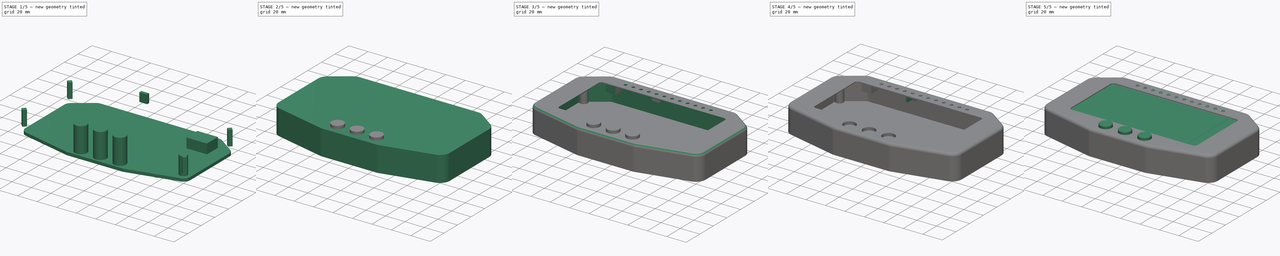
[diagram: build sequence overview — one tinted view per stage of 5, left to right]
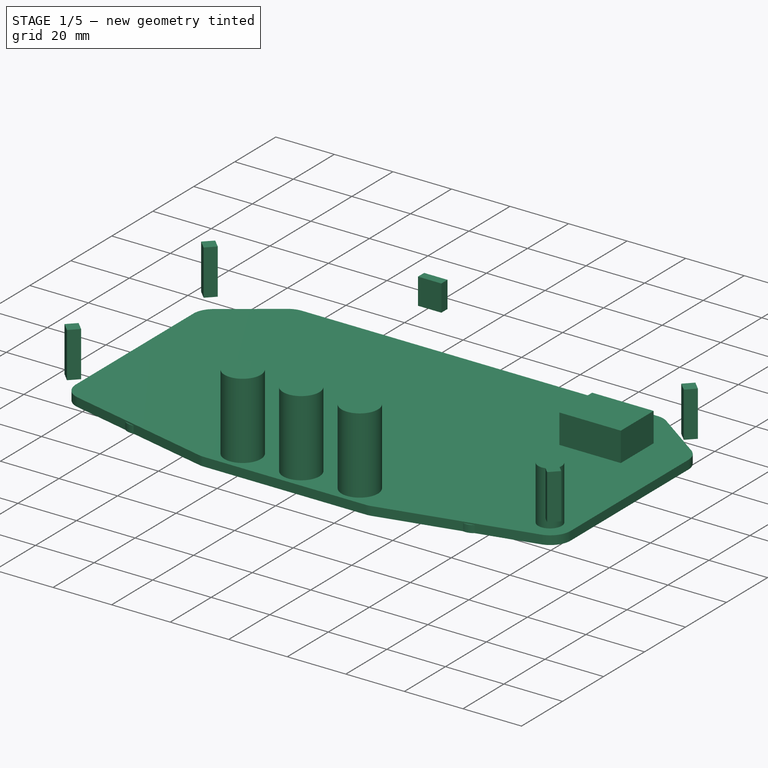
[diagram: stage 1 of 5 — iso view after this stage's code; geometry added in this stage tinted green]
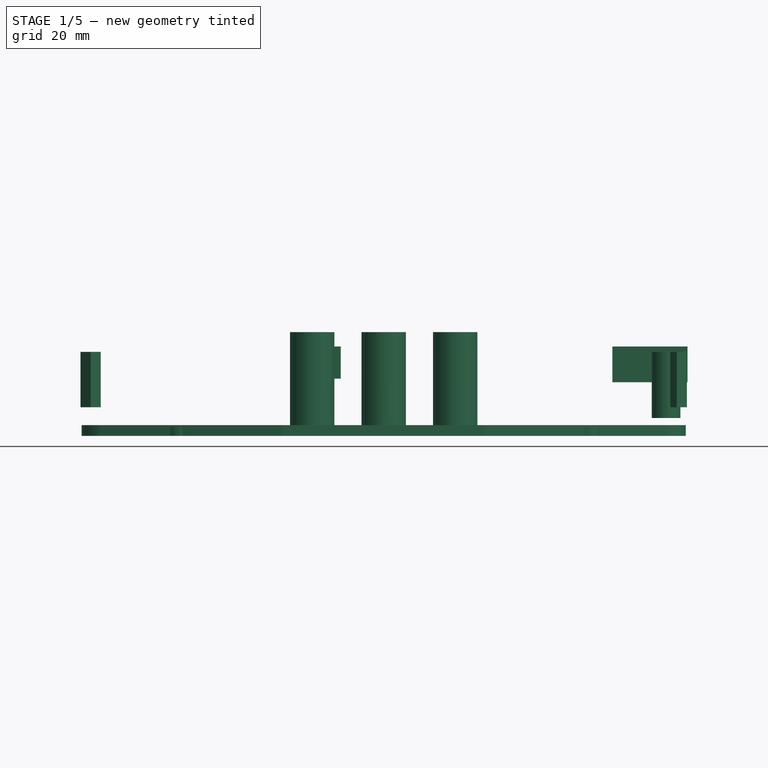
[diagram: stage 1 of 5 — front view after this stage's code; geometry added in this stage tinted green]
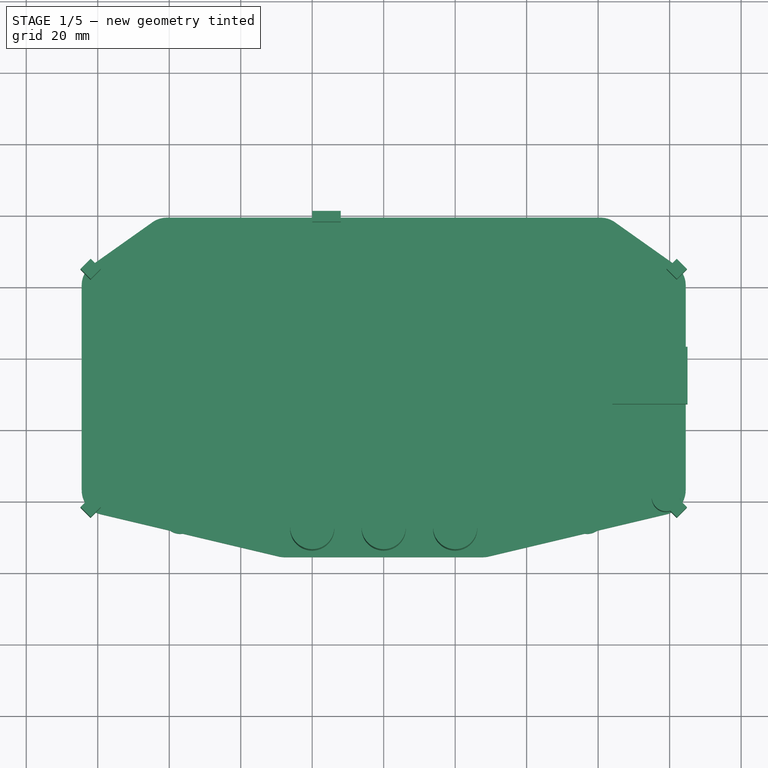
[diagram: stage 1 of 5 — top view after this stage's code; geometry added in this stage tinted green]
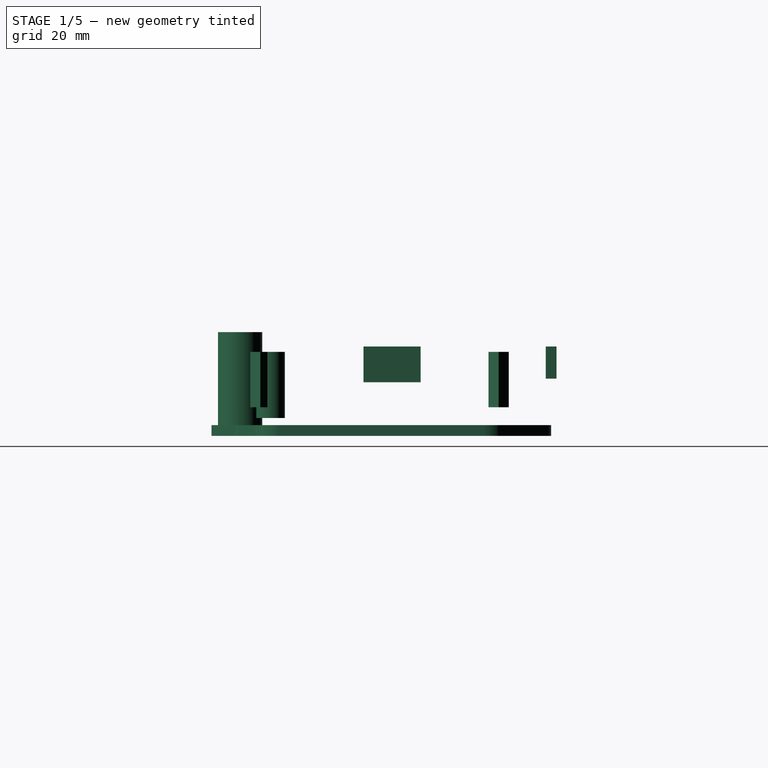
[diagram: stage 1 of 5 — right view after this stage's code; geometry added in this stage tinted green]
FCSTD DOCUMENT  (FreeCAD 0.20R29603 (Git))
Label: dash
License: All rights reserved
LicenseURL: http://en.wikipedia.org/wiki/All_rights_reserved
objects: Part::Cylinder×21, Part::Fillet×13, Part::MultiFuse×13, Part::Box×11, Part::Cut×8, Sketcher::SketchObject×3, PartDesign::Pad×3, PartDesign::Body×3, Part::Mirroring×3, Part::FeaturePython×2, Part::Thickness×1, Part::Feature×1, Image::ImagePlane×1
note: 83 computed .brp shape members not serialized (recipe doc carries the construction recipe); baked Part::Feature solids carry a one-line shape summary decoded from their .brp

FEATURE [Part::Cylinder] Cylinder012
  Angle = 360
  AttacherType = Attacher::AttachEngine3D
  FirstAngle = 0
  Height = 18.5
  Placement = pos=(79,1,5) rot=(0,0,1;0rad)
  Radius = 4
  SecondAngle = 0
FEATURE [Part::Box] Box008  label="Cube008"
  AttacherType = Attacher::AttachEngine3D
  Height = 9
  Length = 8
  Placement = pos=(-20,78,16) rot=(0,0,1;0rad)
  Width = 3
FEATURE [Part::Cylinder] Cylinder018
  Angle = 360
  AttacherType = Attacher::AttachEngine3D
  FirstAngle = 0
  Height = 29
  Placement = pos=(-20,-7.5,0) rot=(0,0,1;0rad)
  Radius = 6.2
  SecondAngle = 0
FEATURE [Part::Cylinder] Cylinder019
  Angle = 360
  AttacherType = Attacher::AttachEngine3D
  FirstAngle = 0
  Height = 29
  Placement = pos=(20,-7.5,0) rot=(0,0,1;0rad)
  Radius = 6.2
  SecondAngle = 0
FEATURE [Part::Cylinder] Cylinder020
  Angle = 360
  AttacherType = Attacher::AttachEngine3D
  FirstAngle = 0
  Height = 29
  Placement = pos=(0,-7.5,0) rot=(0,0,1;0rad)
  Radius = 6.2
  SecondAngle = 0
FEATURE [Part::MultiFuse] Fusion009
  Refine = true
  Shapes = -> [Cylinder018,Cylinder020,Cylinder019]
FEATURE [Part::Box] Box009  label="Cube009"
  AttacherType = Attacher::AttachEngine3D
  Height = 10
  Length = 21
  Placement = pos=(64,27,15) rot=(0,0,1;0rad)
  Width = 16
FEATURE [Part::Box] Box010  label="Cube010"
  AttacherType = Attacher::AttachEngine3D
  Height = 15.5
  Length = 4
  Placement = pos=(-82,1,8) rot=(0,0,1;3.92699rad)
  Width = 4
FEATURE [Part::Mirroring] Part__Mirroring001  label="Cube010 (Mirror #2)"
  Base = (0,0,0)
  Normal = (1,0,0)
  Source = -> Box010
FEATURE [Part::MultiFuse] Fusion010
  Refine = true
  Shapes = -> [Box010,Part__Mirroring001]
FEATURE [Part::Mirroring] Part__Mirroring002  label="Fusion010 (Mirror #3)"
  Base = (0,0,0)
  Normal = (0,1,0)
  Placement = pos=(0,63,0) rot=(0,0,1;0rad)
  Source = -> Fusion010
FEATURE [Part::MultiFuse] Fusion011
  Refine = true
  Shapes = -> [Fusion010,Part__Mirroring002]
FEATURE [Image::ImagePlane] ImagePlane
  Placement = pos=(0,39,25.6) rot=(0,0,1;0rad)
  XSize = 129.64
  YSize = 73.14
FEATURE [Sketcher::SketchObject] Sketch001
  FullyConstrained = true
  MapMode = 5
  Support = -> [XY_Plane001]
  sketch-geometry (22):
    g0: LineSegment StartX=-88 StartY=66 StartZ=0 EndX=-64 EndY=83 EndZ=0
    g1: LineSegment StartX=-64 StartY=83 StartZ=0 EndX=64 EndY=83 EndZ=0
    g2: LineSegment StartX=64 StartY=83 StartZ=0 EndX=88 EndY=66 EndZ=0
    g3: LineSegment StartX=88 StartY=66 StartZ=0 EndX=88 EndY=-5 EndZ=0
    g4: LineSegment StartX=88 StartY=-5 StartZ=0 EndX=29 EndY=-19 EndZ=0
    g5: LineSegment StartX=29 StartY=-19 StartZ=0 EndX=-29 EndY=-19 EndZ=0
    g6: LineSegment StartX=-29 StartY=-19 StartZ=0 EndX=-88 EndY=-5 EndZ=0
    g7: LineSegment StartX=-88 StartY=-5 StartZ=0 EndX=-88 EndY=66 EndZ=0
    g8: LineSegment StartX=-84.5 StartY=64.1901 StartZ=0 EndX=-62.886 EndY=79.5 EndZ=0
    g9: LineSegment StartX=-62.886 StartY=79.5 StartZ=0 EndX=62.886 EndY=79.5 EndZ=0
    g10: LineSegment StartX=62.886 StartY=79.5 StartZ=0 EndX=84.5 EndY=64.1901 EndZ=0
    g11: LineSegment StartX=84.5 StartY=64.1901 StartZ=0 EndX=84.5 EndY=-2.23332 EndZ=0
    g12: LineSegment StartX=84.5 StartY=-2.23332 StartZ=0 EndX=28.5904 EndY=-15.5 EndZ=0
    g13: LineSegment StartX=28.5904 StartY=-15.5 StartZ=0 EndX=-28.5904 EndY=-15.5 EndZ=0
    g14: LineSegment StartX=-28.5904 StartY=-15.5 StartZ=0 EndX=-84.5 EndY=-2.23332 EndZ=0
    g15: LineSegment StartX=-84.5 StartY=-2.23332 StartZ=0 EndX=-84.5 EndY=64.1901 EndZ=0
    g16: LineSegment StartX=-84.5 StartY=64.1901 StartZ=0 EndX=-88 EndY=64.1901 EndZ=0
    g17: LineSegment StartX=-28.5904 StartY=-15.5 StartZ=0 EndX=-28.5904 EndY=-19 EndZ=0
    g18: LineSegment StartX=84.5 StartY=-2.23332 StartZ=0 EndX=85.3081 EndY=-5.63876 EndZ=0
    g19: LineSegment StartX=-62.886 StartY=79.5 StartZ=0 EndX=-62.886 EndY=83 EndZ=0
    g20: LineSegment StartX=84.5 StartY=-2.23332 StartZ=0 EndX=88 EndY=-2.23332 EndZ=0
    g21: LineSegment StartX=62.886 StartY=79.5 StartZ=0 EndX=64.9091 EndY=82.3561 EndZ=0
  constraints (62):
    c: Coincident(g0,g1)
    c: Coincident(g1,g2)
    c: Coincident(g2,g3)
    c: Coincident(g3,g4)
    c: Coincident(g4,g5)
    c: Coincident(g5,g6)
    c: Coincident(g6,g7)
    c: Coincident(g7,g0)
    c: Symmetric(g0,g2,g-2)
    c: Symmetric(g0,g1,g-2)
    c: Symmetric(g5,g4,g-2)
    c: Symmetric(g6,g3,g-2)
    c: Vertical(g7)
    c: Distance(g6,g3) = 176
    c: DistanceY(g4,g1) = 102
    c: DistanceY(g4,g-1) = 19
    c: Distance(g1) = 128
    c: Distance(g5) = 58
    c: Distance(g7) = 71
    c: DistanceY(g-1,g0) = 66
    c: Coincident(g8,g9)
    c: Horizontal(g9)
    c: Coincident(g9,g10)
    c: Coincident(g10,g11)
    c: Vertical(g11)
    c: Coincident(g11,g12)
    c: Coincident(g12,g13)
    c: Horizontal(g13)
    c: Coincident(g13,g14)
    c: Coincident(g14,g15)
    c: Coincident(g15,g8)
    c: Vertical(g15)
    c: Parallel(g8,g0)
    c: Parallel(g10,g2)
    c: Parallel(g14,g6)
    c: Parallel(g12,g4)
    c: Equal(g14,g12)
    c: Equal(g8,g10)
    c: Coincident(g16,g8)
    c: PointOnObject(g16,g7)
    c: Horizontal(g16)
    c: Distance(g16) = 3.5
    c: Coincident(g17,g13)
    c: PointOnObject(g17,g5)
    c: Vertical(g17)
    c: Coincident(g18,g11)
    c: PointOnObject(g18,g4)
    c: Perpendicular(g12,g18)
    c: Coincident(g19,g8)
    c: PointOnObject(g19,g1)
    c: Vertical(g19)
    c: Equal(g19,g16)
    c: Equal(g16,g17)
    c: Equal(g17,g18)
    c: Coincident(g20,g11)
    c: PointOnObject(g20,g3)
    c: Horizontal(g20)
    c: Equal(g20,g18)
    c: Coincident(g21,g9)
    c: PointOnObject(g21,g2)
    c: Perpendicular(g21,g2)
    c: Equal(g21,g19)
FEATURE [PartDesign::Pad] Pad001
  Direction = (0,0,1)
  Length = 3
  Length2 = 10
  Profile = -> Sketch001
  ReferenceAxis = -> Sketch001 [N_Axis]
  Refine = true
  Type = 0
FEATURE [PartDesign::Body] Body001
  Group = -> [Sketch001,Pad001]
  Origin = -> Origin001
  Tip = -> Pad001
FEATURE [Part::Fillet] Fillet013
  Base = -> Pad001
  Edges = 8 edges r=7: [Edge1,Edge2,Edge5,Edge8,Edge11,Edge14,Edge17,Edge20]
FEATURE [Sketcher::SketchObject] Sketch002
  FullyConstrained = true
  MapMode = 5
  Support = -> [XY_Plane002]
  sketch-geometry (16):
    g0: ArcOfCircle CenterX=-57 CenterY=75 CenterZ=0 NormalX=0 NormalY=0 NormalZ=1 AngleXU=0 Radius=4.5 StartAngle=0.808057 EndAngle=3.49614
    g1: ArcOfCircle CenterX=0 CenterY=134.643 CenterZ=0 NormalX=0 NormalY=0 NormalZ=1 AngleXU=0 Radius=78 StartAngle=3.94964 EndAngle=5.47513
    g2: ArcOfCircle CenterX=57 CenterY=75 CenterZ=0 NormalX=0 NormalY=0 NormalZ=1 AngleXU=0 Radius=4.5 StartAngle=5.92864 EndAngle=8.61673
    g3: ArcOfCircle CenterX=164.379 CenterY=35.25 CenterZ=0 NormalX=0 NormalY=0 NormalZ=1 AngleXU=0 Radius=110 StartAngle=2.78705 EndAngle=3.49614
    g4: ArcOfCircle CenterX=57 CenterY=-4.5 CenterZ=0 NormalX=0 NormalY=0 NormalZ=1 AngleXU=0 Radius=4.5 StartAngle=3.94964 EndAngle=6.63773
    g5: ArcOfCircle CenterX=0 CenterY=-64.1427 CenterZ=0 NormalX=0 NormalY=0 NormalZ=1 AngleXU=0 Radius=78 StartAngle=0.808051 EndAngle=2.33354
    g6: ArcOfCircle CenterX=-57 CenterY=-4.5 CenterZ=0 NormalX=0 NormalY=0 NormalZ=1 AngleXU=0 Radius=4.5 StartAngle=2.78705 EndAngle=5.47513
    g7: ArcOfCircle CenterX=-164.379 CenterY=35.25 CenterZ=0 NormalX=0 NormalY=0 NormalZ=1 AngleXU=0 Radius=110 StartAngle=5.92864 EndAngle=6.63773
    g8: LineSegment StartX=-57 StartY=75 StartZ=0 EndX=57 EndY=75 EndZ=0
    g9: LineSegment StartX=57 StartY=75 StartZ=0 EndX=57 EndY=-4.5 EndZ=0
    g10: LineSegment StartX=57 StartY=-4.5 StartZ=0 EndX=-57 EndY=-4.5 EndZ=0
    g11: LineSegment StartX=-57 StartY=-4.5 StartZ=0 EndX=-57 EndY=75 EndZ=0
    g12: Circle CenterX=-57 CenterY=75 CenterZ=0 NormalX=0 NormalY=0 NormalZ=1 AngleXU=0 Radius=1.5
    g13: Circle CenterX=57 CenterY=75 CenterZ=0 NormalX=0 NormalY=0 NormalZ=1 AngleXU=0 Radius=1.5
    g14: Circle CenterX=57 CenterY=-4.5 CenterZ=0 NormalX=0 NormalY=0 NormalZ=1 AngleXU=0 Radius=1.5
    g15: Circle CenterX=-57 CenterY=-4.5 CenterZ=0 NormalX=0 NormalY=0 NormalZ=1 AngleXU=0 Radius=1.5
  constraints (42):
    c: PointOnObject(g1,g-2)
    c: Coincident(g1,g0)
    c: Coincident(g3,g2)
    c: Coincident(g4,g3)
    c: PointOnObject(g5,g-2)
    c: Coincident(g5,g4)
    c: Equal(g7,g3)
    c: Symmetric(g7,g3,g-2)
    c: Equal(g1,g5)
    c: Equal(g6,g0)
    c: Equal(g0,g2)
    c: Equal(g2,g4)
    c: Coincident(g8,g9)
    c: Coincident(g9,g10)
    c: Coincident(g10,g11)
    c: Coincident(g11,g8)
    c: Horizontal(g10)
    c: Vertical(g9)
    c: Vertical(g11)
    c: Coincident(g8,g0)
    c: Coincident(g9,g4)
    c: Coincident(g2,g8)
    c: Coincident(g6,g10)
    c: Distance(g8) = 114
    c: Symmetric(g0,g2,g-2)
    c: Distance(g11) = 79.5
    c: DistanceY(g-1,g6) = -4.5
    c: Radius(g0) = 4.5
    c: Tangent(g7,g6) = 1.5708
    c: Tangent(g6,g5) = 1.5708
    c: Tangent(g7,g0) = 1.5708
    c: Radius(g7) = 110
    c: Radius(g1) = 78
    c: Tangent(g2,g1) = 1.5708
    c: Coincident(g12,g0)
    c: Coincident(g13,g2)
    c: Coincident(g14,g4)
    c: Coincident(g15,g6)
    c: Equal(g15,g12)
    c: Equal(g15,g13)
    c: Equal(g15,g14)
    c: Radius(g15) = 1.5
FEATURE [PartDesign::Pad] Pad002
  Direction = (0,0,1)
  Length = 2.5
  Length2 = 10
  Profile = -> Sketch002
  ReferenceAxis = -> Sketch002 [N_Axis]
  Refine = true
  Type = 0
FEATURE [PartDesign::Body] Body002
  Group = -> [Sketch002,Pad002]
  Origin = -> Origin002
  Placement = pos=(0,0,13.5) rot=(0,0,1;0rad)
  Tip = -> Pad002
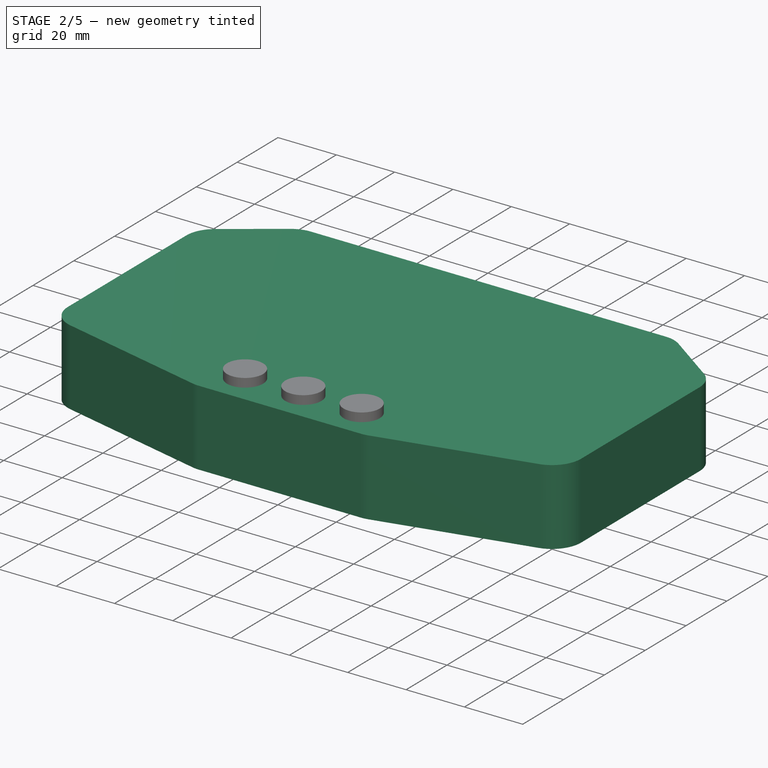
[diagram: stage 2 of 5 — iso view after this stage's code; geometry added in this stage tinted green]
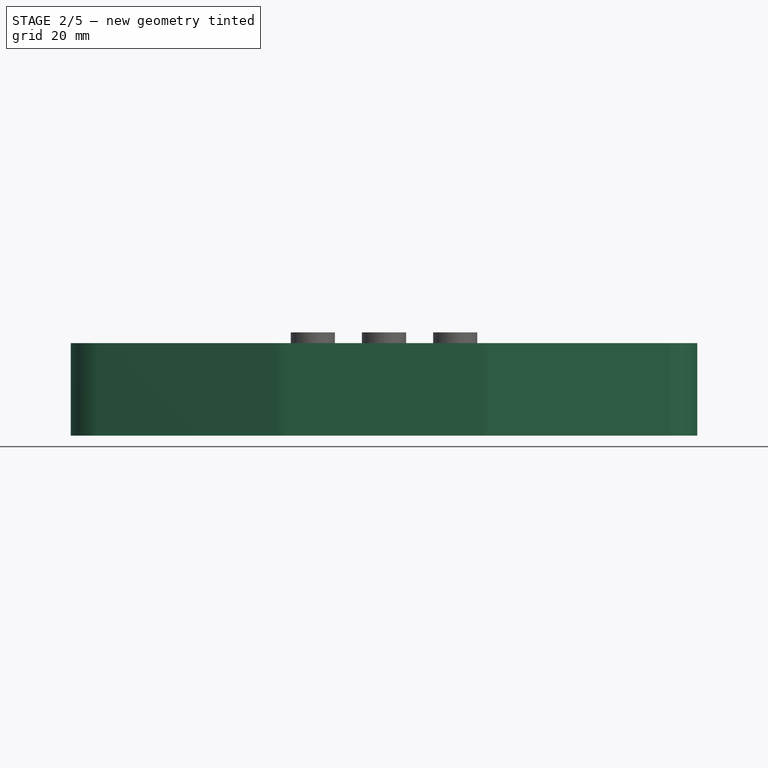
[diagram: stage 2 of 5 — front view after this stage's code; geometry added in this stage tinted green]
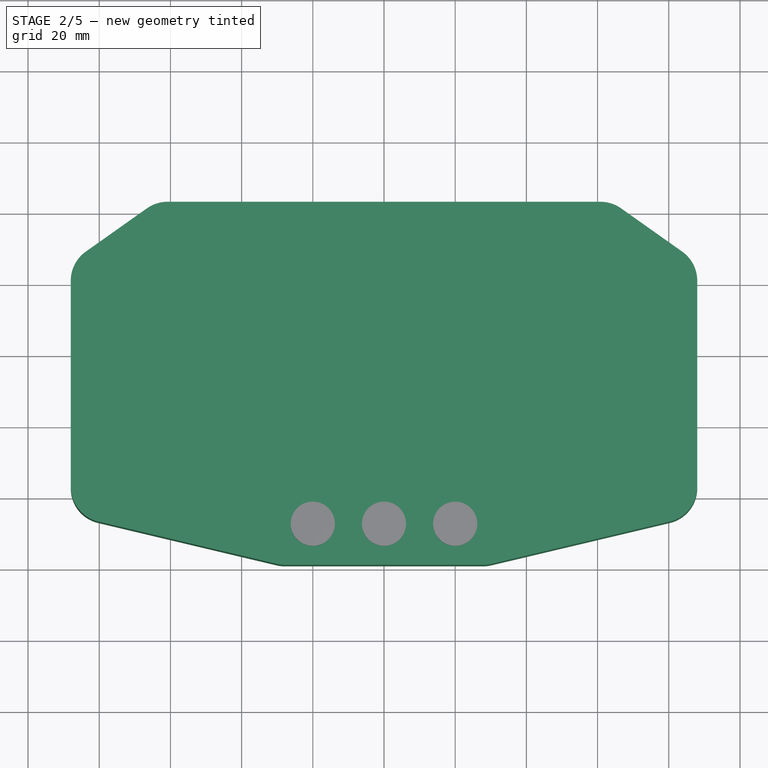
[diagram: stage 2 of 5 — top view after this stage's code; geometry added in this stage tinted green]
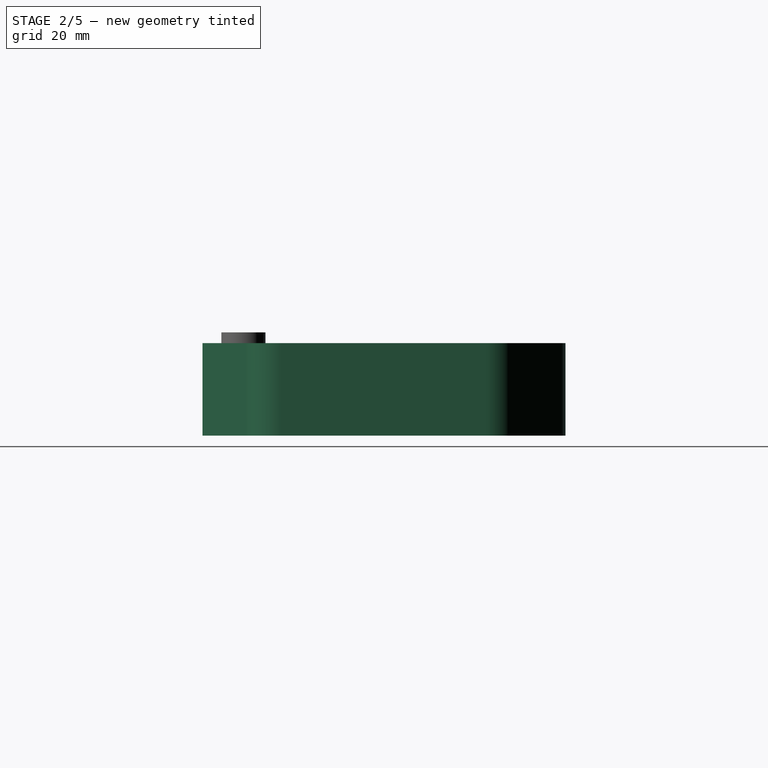
[diagram: stage 2 of 5 — right view after this stage's code; geometry added in this stage tinted green]
FEATURE [PartDesign::Pad] Pad
  Direction = (0,0,1)
  Length = 26
  Length2 = 10
  Profile = -> Sketch
  ReferenceAxis = -> Sketch [N_Axis]
  Refine = true
  Type = 0
FEATURE [PartDesign::Body] Body
  Group = -> [Sketch,Pad]
  Origin = -> Origin
  Tip = -> Pad
FEATURE [Part::Fillet] Fillet003
  Base = -> Pad
  Edges = 8 edges r=10: [Edge1,Edge2,Edge5,Edge8,Edge11,Edge14,Edge17,Edge20]
FEATURE [Part::Box] Box004  label="Cube004"
  AttacherType = Attacher::AttachEngine3D
  Height = 9
  Length = 10
  Placement = pos=(-62,-11,16) rot=(0,0,1;0rad)
  Width = 92
FEATURE [Part::Fillet] Fillet010
  Base = -> Box004
  Edges = 1 edges r=3: [Edge10]
FEATURE [Part::Mirroring] Part__Mirroring  label="Fillet010 (Mirror #1)"
  Base = (0,0,0)
  Normal = (1,0,0)
  Source = -> Fillet010
FEATURE [Part::MultiFuse] Fusion001
  Refine = true
  Shapes = -> [Part__Mirroring,Fillet010]
FEATURE [Part::Cylinder] Cylinder005
  Angle = 360
  AttacherType = Attacher::AttachEngine3D
  FirstAngle = 0
  Height = 20
  Placement = pos=(-57,-4.5,0) rot=(0,0,1;0rad)
  Radius = 1.5
  SecondAngle = 0
FEATURE [Part::Cylinder] Cylinder006
  Angle = 360
  AttacherType = Attacher::AttachEngine3D
  FirstAngle = 0
  Height = 20
  Placement = pos=(57,-4.5,0) rot=(0,0,1;0rad)
  Radius = 1.5
  SecondAngle = 0
FEATURE [Part::Cylinder] Cylinder007
  Angle = 360
  AttacherType = Attacher::AttachEngine3D
  FirstAngle = 0
  Height = 20
  Placement = pos=(57,75,0) rot=(0,0,1;0rad)
  Radius = 1.5
  SecondAngle = 0
FEATURE [Part::Cylinder] Cylinder008
  Angle = 360
  AttacherType = Attacher::AttachEngine3D
  FirstAngle = 0
  Height = 20
  Placement = pos=(-57,75,0) rot=(0,0,1;0rad)
  Radius = 1.5
  SecondAngle = 0
FEATURE [Part::MultiFuse] Fusion003
  Placement = pos=(0,0,4) rot=(0,0,1;0rad)
  Refine = true
  Shapes = -> [Cylinder005,Cylinder006,Cylinder007,Cylinder008]
FEATURE [Part::Cylinder] Cylinder009
  Angle = 360
  AttacherType = Attacher::AttachEngine3D
  FirstAngle = 0
  Height = 18.5
  Placement = pos=(-79,62,5) rot=(0,0,1;0rad)
  Radius = 4
  SecondAngle = 0
FEATURE [Part::Cylinder] Cylinder010
  Angle = 360
  AttacherType = Attacher::AttachEngine3D
  FirstAngle = 0
  Height = 18.5
  Placement = pos=(79,62,5) rot=(0,0,1;0rad)
  Radius = 4
  SecondAngle = 0
FEATURE [Part::Cylinder] Cylinder011
  Angle = 360
  AttacherType = Attacher::AttachEngine3D
  FirstAngle = 0
  Height = 18.5
  Placement = pos=(-79,1,5) rot=(0,0,1;0rad)
  Radius = 4
  SecondAngle = 0
FEATURE [Part::MultiFuse] Fusion004
  Refine = true
  Shapes = -> [Cylinder009,Cylinder010,Cylinder011,Cylinder012]
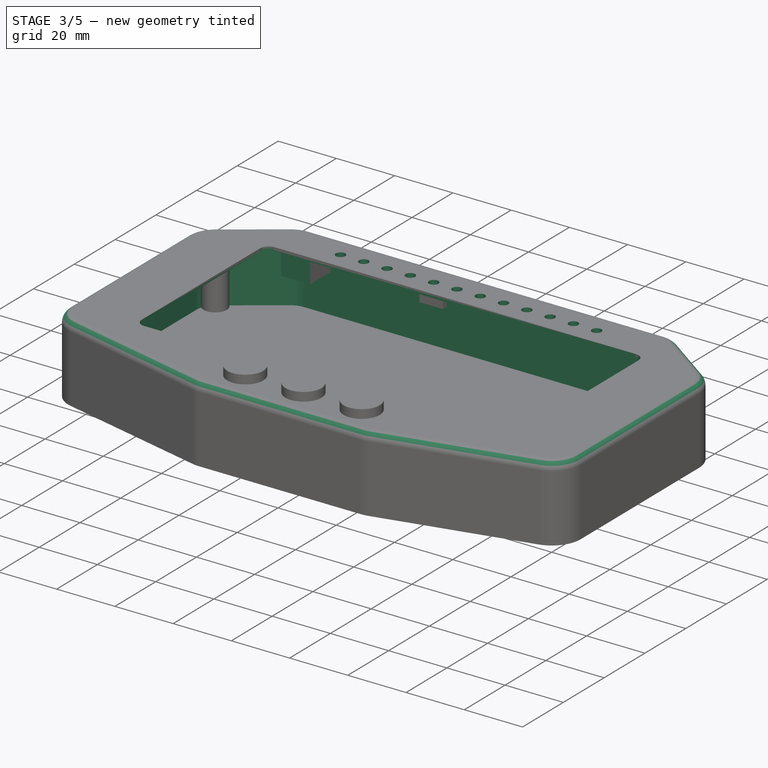
[diagram: stage 3 of 5 — iso view after this stage's code; geometry added in this stage tinted green]
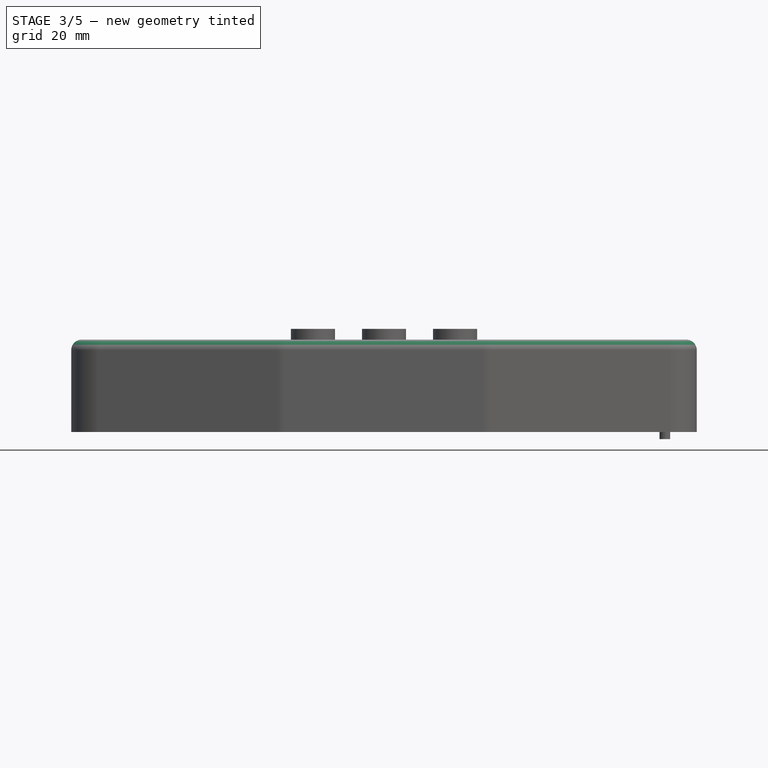
[diagram: stage 3 of 5 — front view after this stage's code; geometry added in this stage tinted green]
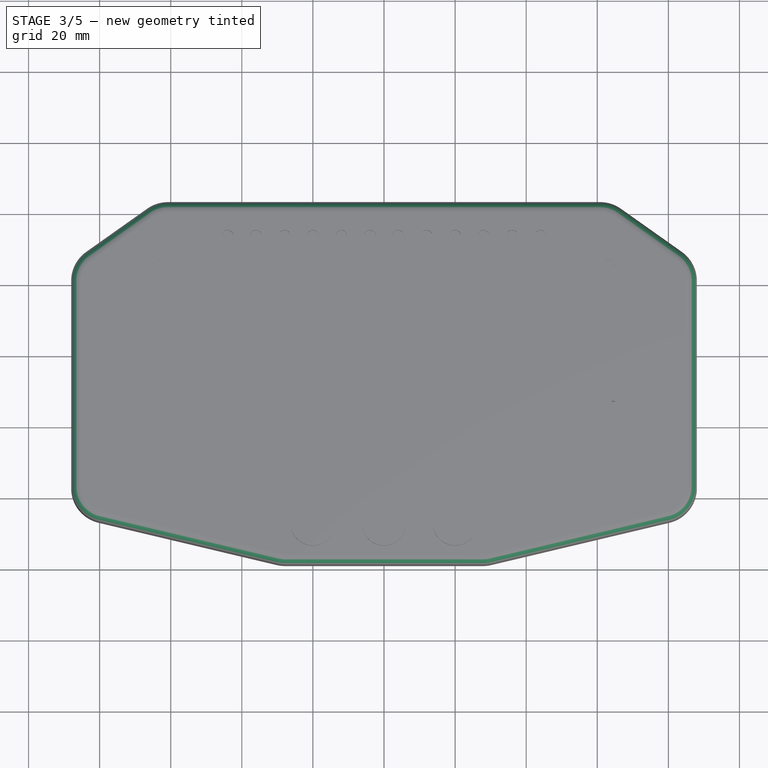
[diagram: stage 3 of 5 — top view after this stage's code; geometry added in this stage tinted green]
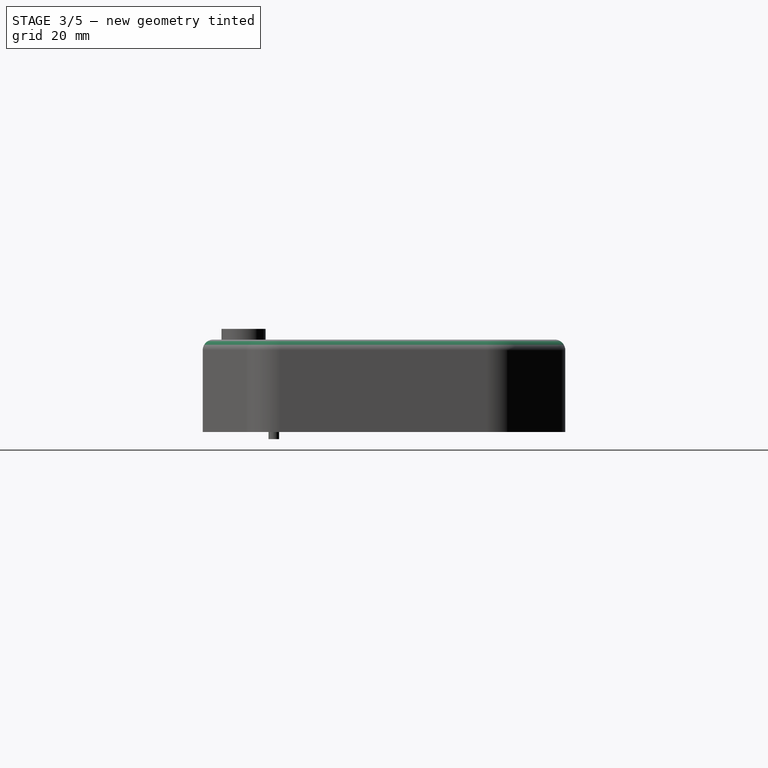
[diagram: stage 3 of 5 — right view after this stage's code; geometry added in this stage tinted green]
FEATURE [Part::Cylinder] Cylinder
  Angle = 360
  AttacherType = Attacher::AttachEngine3D
  FirstAngle = 0
  Height = 30
  Radius = 1.6
  SecondAngle = 0
FEATURE [Sketcher::SketchObject] Sketch
  FullyConstrained = true
  MapMode = 5
  Support = -> [XY_Plane]
  sketch-geometry (8):
    g0: LineSegment StartX=-88 StartY=66 StartZ=0 EndX=-64 EndY=83 EndZ=0
    g1: LineSegment StartX=-64 StartY=83 StartZ=0 EndX=64 EndY=83 EndZ=0
    g2: LineSegment StartX=64 StartY=83 StartZ=0 EndX=88 EndY=66 EndZ=0
    g3: LineSegment StartX=88 StartY=66 StartZ=0 EndX=88 EndY=-5 EndZ=0
    g4: LineSegment StartX=88 StartY=-5 StartZ=0 EndX=29 EndY=-19 EndZ=0
    g5: LineSegment StartX=29 StartY=-19 StartZ=0 EndX=-29 EndY=-19 EndZ=0
    g6: LineSegment StartX=-29 StartY=-19 StartZ=0 EndX=-88 EndY=-5 EndZ=0
    g7: LineSegment StartX=-88 StartY=-5 StartZ=0 EndX=-88 EndY=66 EndZ=0
  constraints (20):
    c: Coincident(g0,g1)
    c: Coincident(g1,g2)
    c: Coincident(g2,g3)
    c: Coincident(g3,g4)
    c: Coincident(g4,g5)
    c: Coincident(g5,g6)
    c: Coincident(g6,g7)
    c: Coincident(g7,g0)
    c: Symmetric(g0,g2,g-2)
    c: Symmetric(g0,g1,g-2)
    c: Symmetric(g5,g4,g-2)
    c: Symmetric(g6,g3,g-2)
    c: Vertical(g7)
    c: Distance(g6,g3) = 176
    c: DistanceY(g4,g1) = 102
    c: DistanceY(g4,g-1) = 19
    c: Distance(g1) = 128
    c: Distance(g5) = 58
    c: Distance(g7) = 71
    c: DistanceY(g-1,g0) = 66
FEATURE [Part::Box] Box002  label="Cube002"
  AttacherType = Attacher::AttachEngine3D
  Height = 40
  Length = 130
  Placement = pos=(-65,3,-1) rot=(0,0,1;0rad)
  Width = 64
FEATURE [Part::Fillet] Fillet002
  Base = -> Box002
  Edges = 4 edges r=3: [Edge1,Edge3,Edge5,Edge7]
FEATURE [Part::FeaturePython] Array  # Draft array (typed FeaturePython)
  AlwaysSyncPlacement = false
  Angle = 360
  ArrayType = 0
  Axis = (0,0,1)
  Base = -> Cylinder
  Center = (0,0,0)
  Count = 12
  ExpandArray = false
  Fuse = false
  IntervalAxis = (0,0,0)
  IntervalX = (8,0,0)
  IntervalY = (0,100,0)
  IntervalZ = (0,0,100)
  NumberCircles = 3
  NumberPolar = 5
  NumberX = 12
  NumberY = 1
  NumberZ = 1
  Placement = pos=(-44,73.5,0) rot=(0,0,1;0rad)
  PlacementList = 12 placements: arithmetic series from (0,0,0) step (8,0,0) to (88,0,0)
  RadialDistance = 50
  ScaleList = (12) [(1,1,1),(1,1,1),(1,1,1),(1,1,1),(1,1,1),(1,1,1),(1,1,1),(1,1,1),(1,1,1),(1,1,1),(1,1,1),(1,1,1)]
  Symmetry = 1
  TangentialDistance = 25
FEATURE [Part::Thickness] Thickness
  Faces = -> Fillet003 [Face2]
  Intersection = false
  Join = 0
  Mode = 0
  SelfIntersection = false
  Value = -3
FEATURE [Part::Fillet] Fillet008
  Base = -> Thickness
  Edges = 1 edges r=3: [Edge13]
FEATURE [Part::Box] Box003  label="Cube003"
  AttacherType = Attacher::AttachEngine3D
  Height = 9
  Length = 139
  Width = 70
FEATURE [Part::Fillet] Fillet009
  Base = -> Box003
  Edges = 4 edges r=6.5: [Edge1,Edge3,Edge5,Edge7]
  Placement = pos=(-69.5,0,16) rot=(0,0,1;0rad)
FEATURE [Part::MultiFuse] Fusion002
  Refine = true
  Shapes = -> [Fillet008,Fusion001]
FEATURE [Part::Cut] Cut
  Base = -> Fusion002
  Refine = true
  Tool = -> Fillet002
FEATURE [Part::Cut] Cut001
  Base = -> Cut
  Refine = true
  Tool = -> Fillet009
FEATURE [Part::Cut] Cut002
  Base = -> Cut001
  Refine = true
  Tool = -> Fusion003
FEATURE [Part::Cut] Cut003
  Base = -> Cut002
  Refine = true
  Tool = -> Array
FEATURE [Part::Cylinder] Cylinder016
  Angle = 360
  AttacherType = Attacher::AttachEngine3D
  FirstAngle = 0
  Height = 20.5
  Placement = pos=(79,1,-2) rot=(0,0,1;0rad)
  Radius = 1.5
  SecondAngle = 0
FEATURE [Part::MultiFuse] Fusion006
  Refine = true
  Shapes = -> [Cut003,Fusion004]
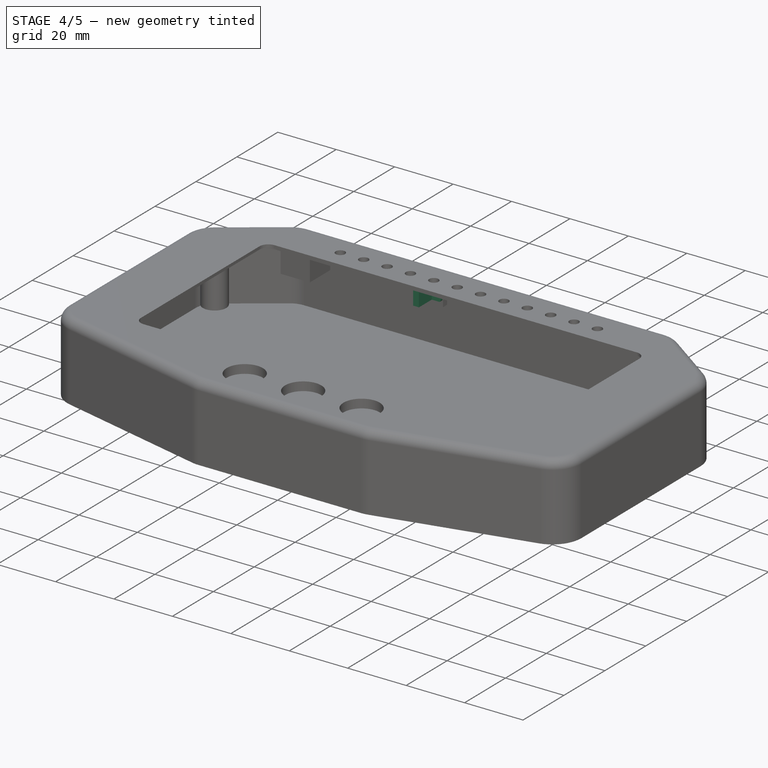
[diagram: stage 4 of 5 — iso view after this stage's code; geometry added in this stage tinted green]
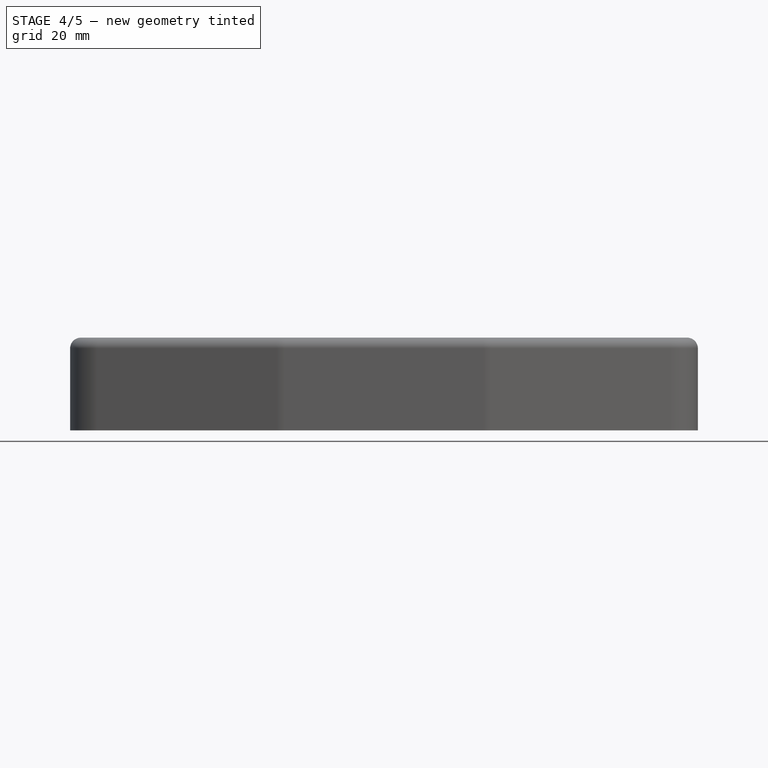
[diagram: stage 4 of 5 — front view after this stage's code; geometry added in this stage tinted green]
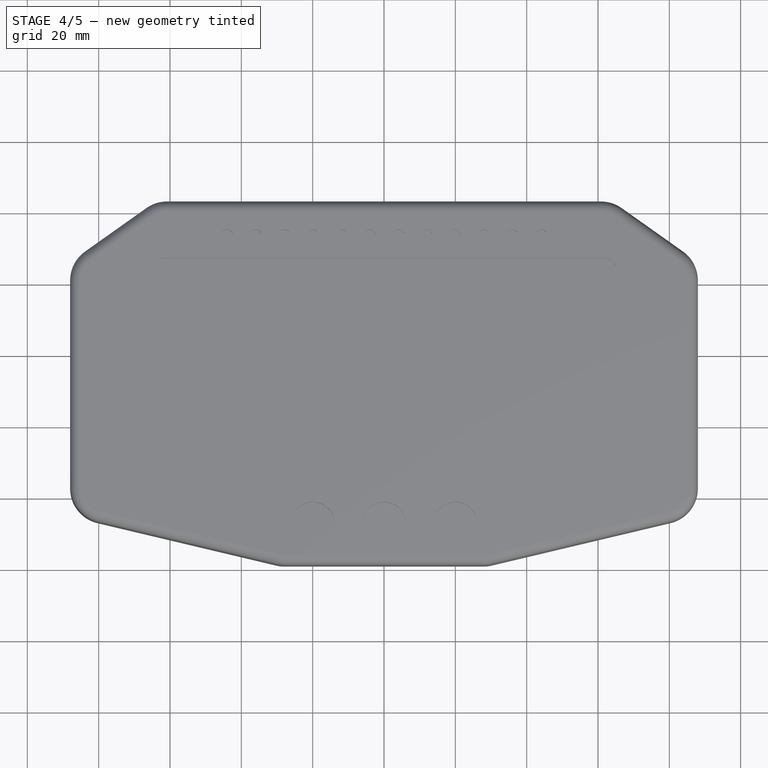
[diagram: stage 4 of 5 — top view after this stage's code; geometry added in this stage tinted green]
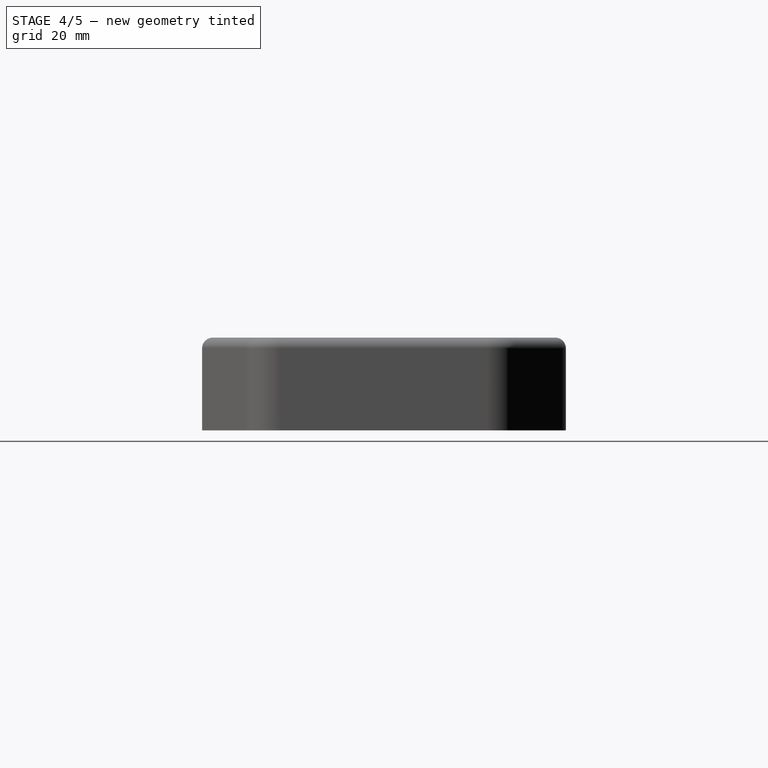
[diagram: stage 4 of 5 — right view after this stage's code; geometry added in this stage tinted green]
FEATURE [Part::Cylinder] Cylinder004
  Angle = 360
  AttacherType = Attacher::AttachEngine3D
  FirstAngle = 0
  Height = 6
  Placement = pos=(-16,77,20.5) rot=(-1,0,0;1.5708rad)
  Radius = 2.2
  SecondAngle = 0
FEATURE [Part::Cylinder] Cylinder013
  Angle = 360
  AttacherType = Attacher::AttachEngine3D
  FirstAngle = 0
  Height = 20.5
  Placement = pos=(-79,62,-2) rot=(0,0,1;0rad)
  Radius = 1.5
  SecondAngle = 0
FEATURE [Part::Cylinder] Cylinder014
  Angle = 360
  AttacherType = Attacher::AttachEngine3D
  FirstAngle = 0
  Height = 20.5
  Placement = pos=(79,62,-2) rot=(0,0,1;0rad)
  Radius = 1.5
  SecondAngle = 0
FEATURE [Part::Cylinder] Cylinder015
  Angle = 360
  AttacherType = Attacher::AttachEngine3D
  FirstAngle = 0
  Height = 20.5
  Placement = pos=(-79,1,-2) rot=(0,0,1;0rad)
  Radius = 1.5
  SecondAngle = 0
FEATURE [Part::MultiFuse] Fusion005
  Refine = true
  Shapes = -> [Cylinder013,Cylinder014,Cylinder015,Cylinder016]
FEATURE [Part::Cut] Cut004
  Base = -> Fusion006
  Refine = true
  Tool = -> Fusion005
FEATURE [Part::Box] Box006  label="Cube006"
  AttacherType = Attacher::AttachEngine3D
  Height = 5
  Length = 2
  Placement = pos=(-17,70.5,18) rot=(0,0,1;0rad)
  Width = 6.5
FEATURE [Part::Cylinder] Cylinder017
  Angle = 360
  AttacherType = Attacher::AttachEngine3D
  FirstAngle = 0
  Height = 11.5
  Placement = pos=(-16,76.5,20.5) rot=(-1,0,0;1.5708rad)
  Radius = 2.4
  SecondAngle = 0
FEATURE [Part::Box] Box007  label="Cube007"
  AttacherType = Attacher::AttachEngine3D
  Height = 5
  Length = 8
  Placement = pos=(-20,79,18) rot=(0,0,1;0rad)
  Width = 1
FEATURE [Part::MultiFuse] Fusion007
  Refine = true
  Shapes = -> [Cut004,Box008]
FEATURE [Part::Cut] Cut005
  Base = -> Fusion007
  Refine = true
  Tool = -> Cylinder017
FEATURE [Part::Fillet] Fillet011
  Base = -> Box007
  Edges = 4 edges r=0.5: [Edge2,Edge4,Edge6,Edge8]
  Placement = pos=(0,-2.25,0) rot=(0,0,1;0rad)
FEATURE [Part::Cut] Cut006
  Base = -> Cut005
  Refine = true
  Tool = -> Fusion009
FEATURE [Part::Cut] Cut007
  Base = -> Cut006
  Refine = true
  Tool = -> Box009
FEATURE [Part::MultiFuse] Fusion012
  Refine = true
  Shapes = -> [Cut007,Fusion011]
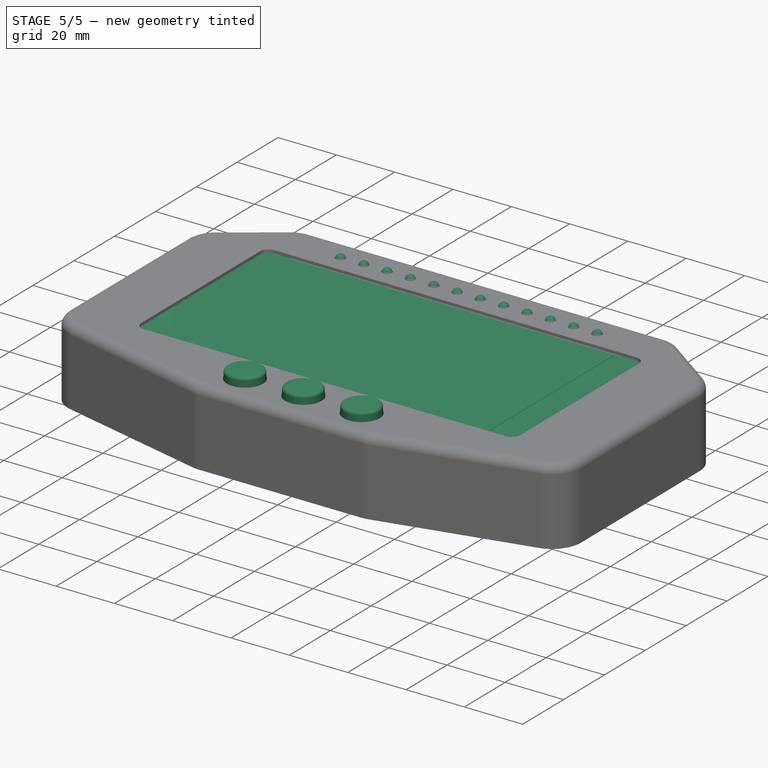
[diagram: stage 5 of 5 — iso view after this stage's code; geometry added in this stage tinted green]
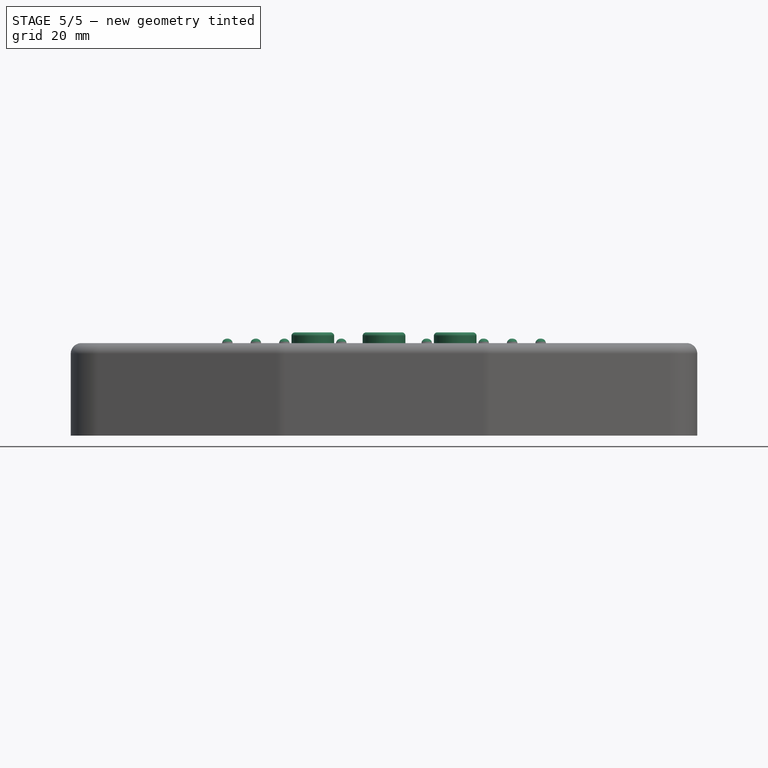
[diagram: stage 5 of 5 — front view after this stage's code; geometry added in this stage tinted green]
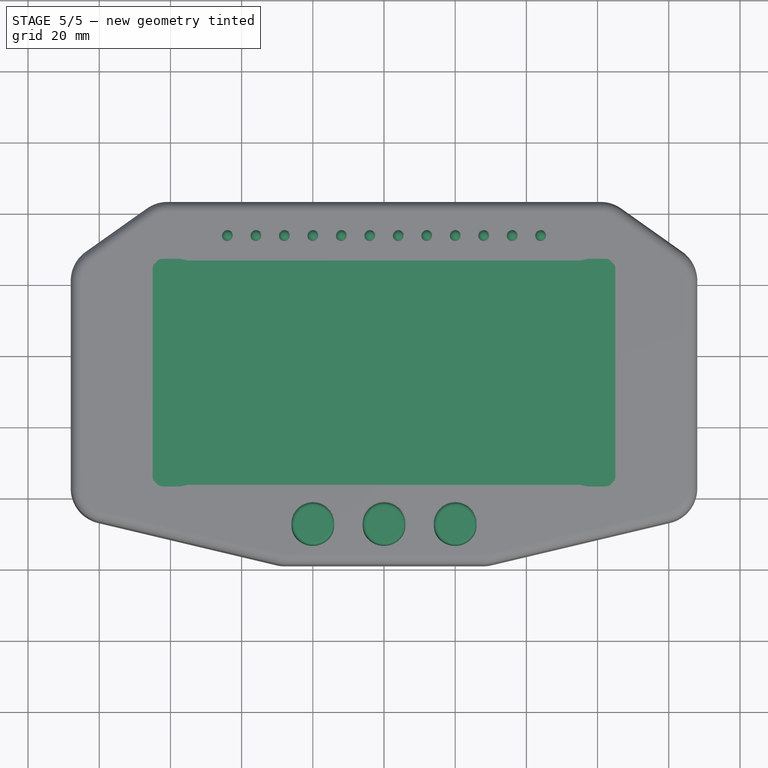
[diagram: stage 5 of 5 — top view after this stage's code; geometry added in this stage tinted green]
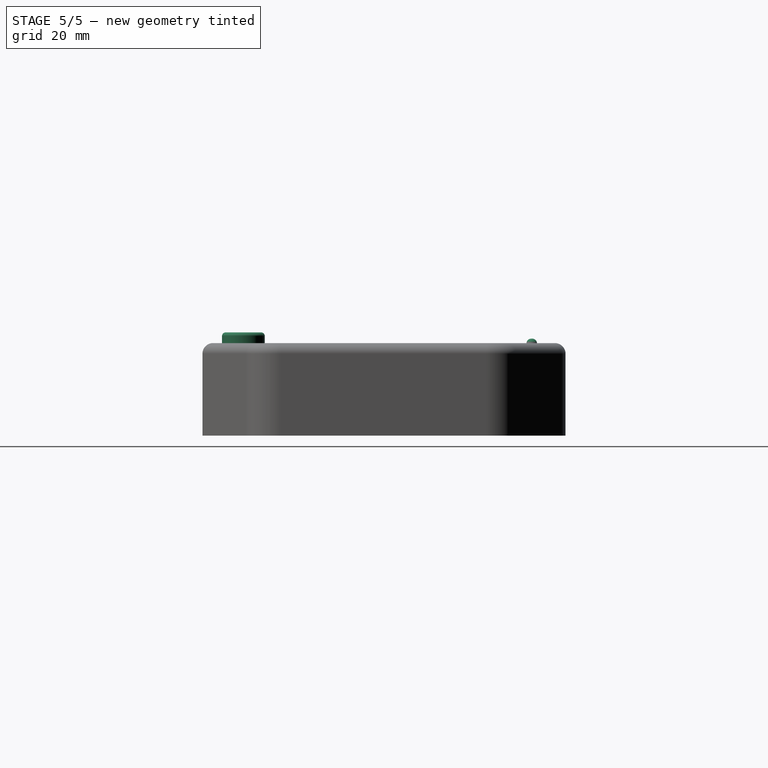
[diagram: stage 5 of 5 — right view after this stage's code; geometry added in this stage tinted green]
FEATURE [Part::Box] Box  label="Cube"
  AttacherType = Attacher::AttachEngine3D
  Height = 9
  Length = 139
  Width = 70
FEATURE [Part::Fillet] Fillet
  Base = -> Box
  Edges = 4 edges r=7.5: [Edge1,Edge3,Edge5,Edge7]
FEATURE [Part::Fillet] Fillet001
  Base = -> Fillet
  Edges = 2 edges r=2: [Edge11,Edge14]
FEATURE [Part::Box] Box001  label="Cube001"
  AttacherType = Attacher::AttachEngine3D
  Height = 8.1
  Length = 110
  Placement = pos=(14.5,3.5,1) rot=(0,0,1;0rad)
  Width = 63
FEATURE [Part::MultiFuse] Fusion  label="movil"
  Placement = pos=(-69.5,0,16) rot=(0,0,1;0rad)
  Refine = true
  Shapes = -> [Fillet001,Box001]
FEATURE [Part::Cylinder] Cylinder001
  Angle = 360
  AttacherType = Attacher::AttachEngine3D
  FirstAngle = 0
  Height = 29
  Placement = pos=(0,-7.5,0) rot=(0,0,1;0rad)
  Radius = 6
  SecondAngle = 0
FEATURE [Part::Cylinder] Cylinder002
  Angle = 360
  AttacherType = Attacher::AttachEngine3D
  FirstAngle = 0
  Height = 29
  Placement = pos=(-20,-7.5,0) rot=(0,0,1;0rad)
  Radius = 6
  SecondAngle = 0
FEATURE [Part::Cylinder] Cylinder003
  Angle = 360
  AttacherType = Attacher::AttachEngine3D
  FirstAngle = 0
  Height = 29
  Placement = pos=(20,-7.5,0) rot=(0,0,1;0rad)
  Radius = 6
  SecondAngle = 0
FEATURE [Part::Fillet] Fillet005
  Base = -> Cylinder002
  Edges = 1 edges r=1: [Edge3]
FEATURE [Part::Fillet] Fillet006
  Base = -> Cylinder001
  Edges = 1 edges r=1: [Edge3]
FEATURE [Part::Fillet] Fillet007
  Base = -> Cylinder003
  Edges = 1 edges r=1: [Edge3]
FEATURE [Part::Box] Box005  label="Cube005"
  AttacherType = Attacher::AttachEngine3D
  Height = 10
  Length = 82
  Placement = pos=(-42,70.5,1) rot=(0,0,1;0rad)
  Width = 10
FEATURE [Part::Feature] Part__Feature  label="LED 3mm Red v2"
  Placement = pos=(-44,73.5,16.65) rot=(1,0,0;1.5708rad)
  shape: bbox 3.578 x 3.853 x 12.6 mm, 31 faces, 5 solids (baked)
FEATURE [Part::FeaturePython] Array001  # Draft array (typed FeaturePython)
  AlwaysSyncPlacement = false
  Angle = 360
  ArrayType = 0
  Axis = (0,0,1)
  Base = -> Part__Feature
  Center = (0,0,0)
  Count = 12
  ExpandArray = false
  Fuse = false
  IntervalAxis = (0,0,0)
  IntervalX = (8,0,0)
  IntervalY = (0,100,0)
  IntervalZ = (0,0,100)
  NumberCircles = 3
  NumberPolar = 5
  NumberX = 12
  NumberY = 1
  NumberZ = 1
  PlacementList = 12 placements: arithmetic series from (-44,73.5,16.65) step (8,0,0) to (44,73.5,16.65)
  RadialDistance = 50
  ScaleList = (12) [(1,1,1),(1,1,1),(1,1,1),(1,1,1),(1,1,1),(1,1,1),(1,1,1),(1,1,1),(1,1,1),(1,1,1),(1,1,1),(1,1,1)]
  Symmetry = 1
  TangentialDistance = 25
FEATURE [Part::MultiFuse] Fusion008
  Refine = true
  Shapes = -> [Cylinder004,Fillet011,Box006]
FEATURE [Part::Fillet] Fillet012
  Base = -> Fusion008
  Edges = 4 edges r=0.5: [Edge28,Edge30,Edge38,Edge39]
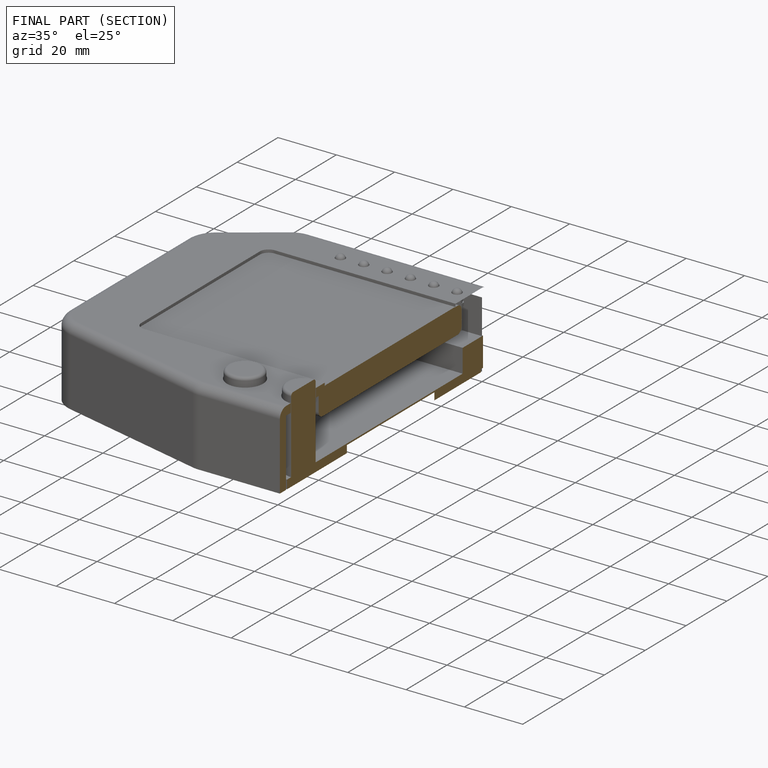
[diagram: finished part — half-section view (interior)]
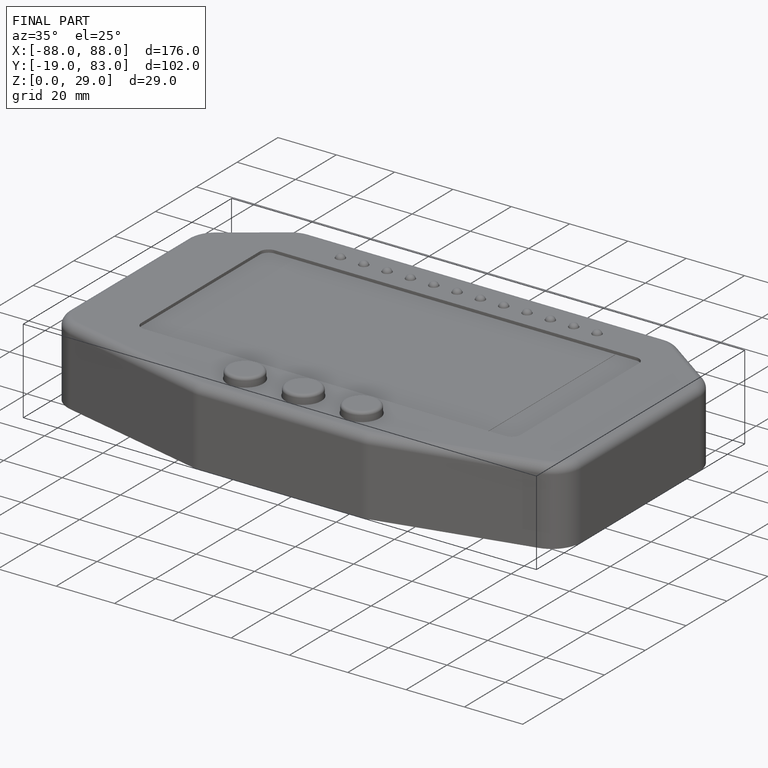
[diagram: finished part — iso view with bounding-box wireframe]
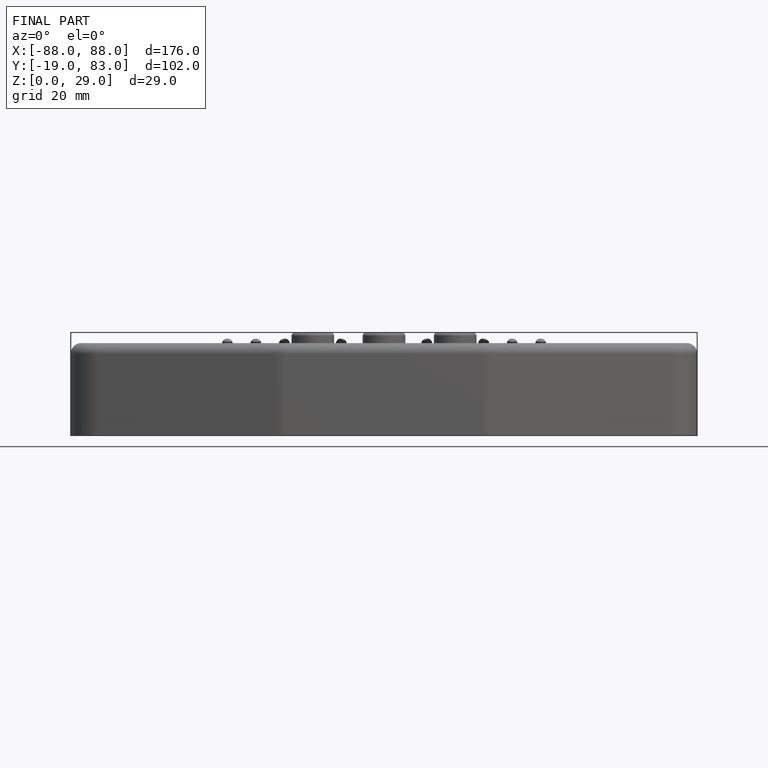
[diagram: finished part — front view with bounding-box wireframe]
